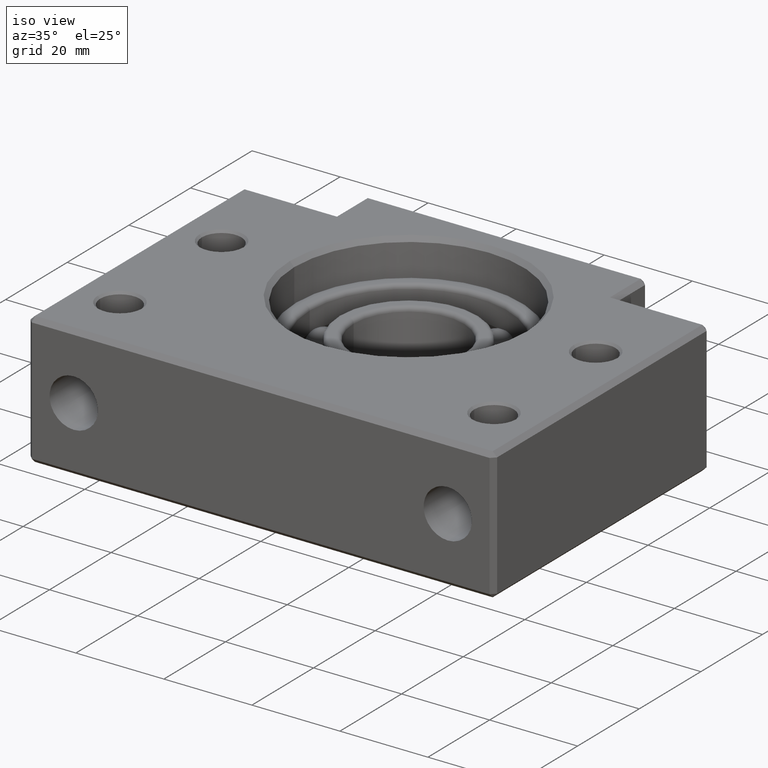
[diagram: clean part render]
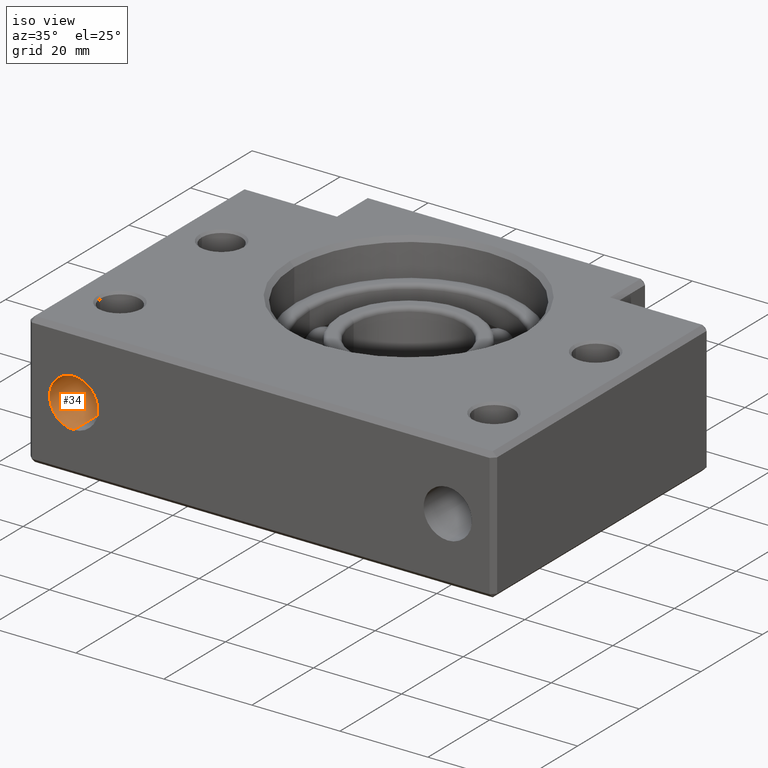
[diagram: same view with one face highlighted and labeled with its STEP entity id]
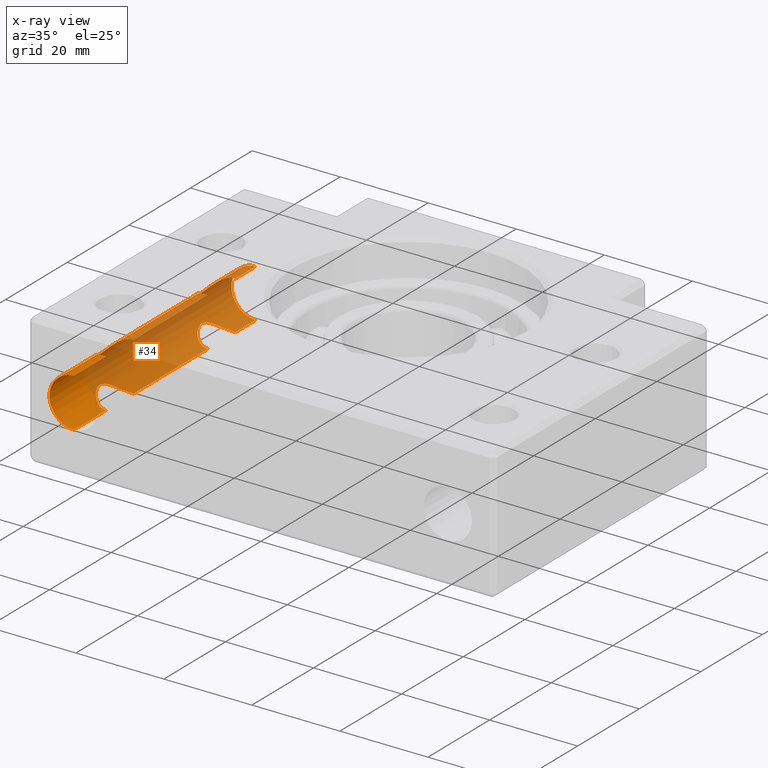
[diagram: x-ray of the same camera — body ghosted, the highlighted face saturated]
A machine part, iso view. The second image highlights one B-rep face of the part: STEP entity #34.
The next image is the same camera in x-ray: the body ghosted, the highlighted face saturated — about 78% of this face is hidden behind the body in this view.
In plain terms, the highlighted cylindrical surface (edge-blend (fillet) strip) has radius 5.5 mm, axis along (-0, 1, -0).
Its self-contained STEP definition (entity closure, byte-faithful):
#13 = ORIENTED_EDGE ( 'NONE', *, *, #50, .F. ) ;
#15 = VERTEX_POINT ( 'NONE', #1627 ) ;
#16 = EDGE_CURVE ( 'NONE', #20, #15, #1626, .T. ) ;
#17 = VERTEX_POINT ( 'NONE', #1680 ) ;
#18 = ORIENTED_EDGE ( 'NONE', *, *, #16, .T. ) ;
#19 = ORIENTED_EDGE ( 'NONE', *, *, #21, .F. ) ;
#20 = VERTEX_POINT ( 'NONE', #1679 ) ;
#21 = EDGE_CURVE ( 'NONE', #20, #17, #1678, .T. ) ;
#22 = EDGE_LOOP ( 'NONE', ( #19, #18, #13, #35, #1411, #1410, #1406, #1404, #1392, #1394, #1397, #1400, #1390, #1459, #1376, #1379 ) ) ;
#27 = EDGE_CURVE ( 'NONE', #146, #45, #1655, .T. ) ;
#34 = ADVANCED_FACE ( 'NONE', ( #1692 ), #1687, .F. ) ;
#35 = ORIENTED_EDGE ( 'NONE', *, *, #27, .F. ) ;
#45 = VERTEX_POINT ( 'NONE', #1686 ) ;
#50 = EDGE_CURVE ( 'NONE', #45, #15, #1748, .T. ) ;
#146 = VERTEX_POINT ( 'NONE', #1910 ) ;
#1375 = VERTEX_POINT ( 'NONE', #4005 ) ;
#1376 = ORIENTED_EDGE ( 'NONE', *, *, #1377, .F. ) ;
#1377 = EDGE_CURVE ( 'NONE', #1378, #1375, #3999, .T. ) ;
#1378 = VERTEX_POINT ( 'NONE', #3998 ) ;
#1379 = ORIENTED_EDGE ( 'NONE', *, *, #1381, .F. ) ;
#1381 = EDGE_CURVE ( 'NONE', #17, #1378, #4000, .T. ) ;
#1389 = VERTEX_POINT ( 'NONE', #4089 ) ;
#1390 = ORIENTED_EDGE ( 'NONE', *, *, #1461, .F. ) ;
#1391 = EDGE_CURVE ( 'NONE', #1415, #1402, #4088, .T. ) ;
#1392 = ORIENTED_EDGE ( 'NONE', *, *, #1393, .T. ) ;
#1393 = EDGE_CURVE ( 'NONE', #1402, #1403, #4084, .T. ) ;
#1394 = ORIENTED_EDGE ( 'NONE', *, *, #1395, .F. ) ;
#1395 = EDGE_CURVE ( 'NONE', #1396, #1403, #4079, .T. ) ;
#1396 = VERTEX_POINT ( 'NONE', #4075 ) ;
#1397 = ORIENTED_EDGE ( 'NONE', *, *, #1398, .F. ) ;
#1398 = EDGE_CURVE ( 'NONE', #1399, #1396, #4065, .T. ) ;
#1399 = VERTEX_POINT ( 'NONE', #4066 ) ;
#1400 = ORIENTED_EDGE ( 'NONE', *, *, #1401, .F. ) ;
#1401 = EDGE_CURVE ( 'NONE', #1414, #1399, #4132, .T. ) ;
#1402 = VERTEX_POINT ( 'NONE', #4131 ) ;
#1403 = VERTEX_POINT ( 'NONE', #4116 ) ;
#1404 = ORIENTED_EDGE ( 'NONE', *, *, #1391, .T. ) ;
#1406 = ORIENTED_EDGE ( 'NONE', *, *, #1407, .F. ) ;
#1407 = EDGE_CURVE ( 'NONE', #1415, #1409, #4162, .T. ) ;
#1408 = EDGE_CURVE ( 'NONE', #1409, #1413, #4157, .T. ) ;
#1409 = VERTEX_POINT ( 'NONE', #4156 ) ;
#1410 = ORIENTED_EDGE ( 'NONE', *, *, #1408, .F. ) ;
#1411 = ORIENTED_EDGE ( 'NONE', *, *, #1412, .T. ) ;
#1412 = EDGE_CURVE ( 'NONE', #146, #1413, #4158, .T. ) ;
#1413 = VERTEX_POINT ( 'NONE', #4203 ) ;
#1414 = VERTEX_POINT ( 'NONE', #4202 ) ;
#1415 = VERTEX_POINT ( 'NONE', #4182 ) ;
#1459 = ORIENTED_EDGE ( 'NONE', *, *, #1460, .F. ) ;
#1460 = EDGE_CURVE ( 'NONE', #1375, #1389, #4382, .T. ) ;
#1461 = EDGE_CURVE ( 'NONE', #1389, #1414, #4456, .T. ) ;
#1623 = DIRECTION ( 'NONE',  ( -0.0000000000000000000, 1.000000000000000000, -0.0000000000000000000 ) ) ;
#1624 = VECTOR ( 'NONE', #1623, 1000.000000000000000 ) ;
#1625 = CARTESIAN_POINT ( 'NONE',  ( -42.50000000000000000, 70.00000000000000000, -5.499999999999994700 ) ) ;
#1626 = LINE ( 'NONE', #1625, #1624 ) ;
#1627 = CARTESIAN_POINT ( 'NONE',  ( -42.50000000000000000, 10.50000000000000200, -5.499999999999994700 ) ) ;
#1654 = CARTESIAN_POINT ( 'NONE',  ( -42.65569211035774800, 19.50000000000000000, -5.499999999999996400 ) ) ;
#1655 = B_SPLINE_CURVE_WITH_KNOTS ( 'NONE', 3,
 ( #1658, #1654, #1720, #1719, #1718, #1717, #1716, #1715, #1714, #1713, #1712, #1711, #1710, #1709, #1708, #1707, #1706, #1705, #1704, #1703, #1702, #1701, #1700, #1699 ),
 .UNSPECIFIED., .F., .F.,
 ( 4, 2, 2, 2, 2, 2, 2, 2, 2, 2, 2, 4 ),
 ( 0.007502526532465637400, 0.007970472504696209500, 0.008438418476926780700, 0.009374310421387924800, 0.01031020236584907100, 0.01124609431031021700, 0.01218198625477136300, 0.01311787819923250500, 0.01358582417146307100, 0.01405377014369363500, 0.01452171611592420100, 0.01498966208815476600 ),
 .UNSPECIFIED. ) ;
#1658 = CARTESIAN_POINT ( 'NONE',  ( -42.50000000000000000, 19.49999999999999600, -5.499999999999994700 ) ) ;
#1674 = DIRECTION ( 'NONE',  ( 0.0000000000000000000, 0.0000000000000000000, 1.000000000000000000 ) ) ;
#1675 = DIRECTION ( 'NONE',  ( -0.0000000000000000000, 1.000000000000000000, -0.0000000000000000000 ) ) ;
#1676 = CARTESIAN_POINT ( 'NONE',  ( -42.50000000000000000, 0.0000000000000000000, 0.0000000000000000000 ) ) ;
#1677 = AXIS2_PLACEMENT_3D ( 'NONE', #1676, #1675, #1674 ) ;
#1678 = CIRCLE ( 'NONE', #1677, 5.499999999999984000 ) ;
#1679 = CARTESIAN_POINT ( 'NONE',  ( -42.50000000000000000, 0.0000000000000000000, -5.499999999999984000 ) ) ;
#1680 = CARTESIAN_POINT ( 'NONE',  ( -42.50000000000000000, 0.0000000000000000000, 5.499999999999984000 ) ) ;
#1681 = DIRECTION ( 'NONE',  ( 0.0000000000000000000, 0.0000000000000000000, 1.000000000000000000 ) ) ;
#1682 = DIRECTION ( 'NONE',  ( -0.0000000000000000000, 1.000000000000000000, -0.0000000000000000000 ) ) ;
#1683 = CARTESIAN_POINT ( 'NONE',  ( -42.50000000000000000, 70.00000000000000000, 0.0000000000000000000 ) ) ;
#1684 = AXIS2_PLACEMENT_3D ( 'NONE', #1683, #1682, #1681 ) ;
#1686 = CARTESIAN_POINT ( 'NONE',  ( -47.00000000000000000, 15.00000000000000000, -3.162277660168373700 ) ) ;
#1687 = CYLINDRICAL_SURFACE ( 'NONE', #1684, 5.499999999999994700 ) ;
#1692 = FACE_OUTER_BOUND ( 'NONE', #22, .T. ) ;
#1699 = CARTESIAN_POINT ( 'NONE',  ( -47.00000000000000000, 15.00000000000000000, -3.162277660168373700 ) ) ;
#1700 = CARTESIAN_POINT ( 'NONE',  ( -46.99999999999998600, 15.15634697075928500, -3.162277660168373300 ) ) ;
#1701 = CARTESIAN_POINT ( 'NONE',  ( -46.99163234680326400, 15.31534251547247800, -3.174274788849245100 ) ) ;
#1702 = CARTESIAN_POINT ( 'NONE',  ( -46.95913124019567400, 15.62478046034173800, -3.219771755370906400 ) ) ;
#1703 = CARTESIAN_POINT ( 'NONE',  ( -46.93519915392791100, 15.77578345577797200, -3.252950897897002300 ) ) ;
#1704 = CARTESIAN_POINT ( 'NONE',  ( -46.87316937340389000, 16.07155080924035700, -3.335876303260322900 ) ) ;
#1705 = CARTESIAN_POINT ( 'NONE',  ( -46.83474881714526100, 16.21721813566953700, -3.385999050853091500 ) ) ;
#1706 = CARTESIAN_POINT ( 'NONE',  ( -46.74593545221461000, 16.49789833873069600, -3.496722610638051300 ) ) ;
#1707 = CARTESIAN_POINT ( 'NONE',  ( -46.69565159054012300, 16.63302640210712700, -3.557202961204028100 ) ) ;
#1708 = CARTESIAN_POINT ( 'NONE',  ( -46.52823191149600700, 17.02593624379659300, -3.748611525993029000 ) ) ;
#1709 = CARTESIAN_POINT ( 'NONE',  ( -46.39430241344015800, 17.27215110638600100, -3.889662600087514700 ) ) ;
#1710 = CARTESIAN_POINT ( 'NONE',  ( -46.08289712435534800, 17.73698924620887500, -4.178266940506732800 ) ) ;
#1711 = CARTESIAN_POINT ( 'NONE',  ( -45.90814994950158500, 17.95167728849040500, -4.323479843170016300 ) ) ;
#1712 = CARTESIAN_POINT ( 'NONE',  ( -45.51732533157800700, 18.35016906097219500, -4.604748839622278200 ) ) ;
#1713 = CARTESIAN_POINT ( 'NONE',  ( -45.29913797122920700, 18.53516766955951700, -4.741950924234935800 ) ) ;
#1714 = CARTESIAN_POINT ( 'NONE',  ( -44.82671569424836400, 18.86250927662502600, -4.990758061453996100 ) ) ;
#1715 = CARTESIAN_POINT ( 'NONE',  ( -44.57156234016917300, 19.00612994729786100, -5.103307477888058100 ) ) ;
#1716 = CARTESIAN_POINT ( 'NONE',  ( -44.02004273320773800, 19.24616506662967600, -5.293825444071395700 ) ) ;
#1717 = CARTESIAN_POINT ( 'NONE',  ( -43.73144248322659400, 19.33929001300146000, -5.369175809390899400 ) ) ;
#1718 = CARTESIAN_POINT ( 'NONE',  ( -43.27694848009662800, 19.43512380445944700, -5.447015322604333900 ) ) ;
#1719 = CARTESIAN_POINT ( 'NONE',  ( -43.12118756756514400, 19.45964463557997300, -5.467023270940716300 ) ) ;
#1720 = CARTESIAN_POINT ( 'NONE',  ( -42.81106827662004800, 19.49194176242694700, -5.493400947171568100 ) ) ;
#1721 = CARTESIAN_POINT ( 'NONE',  ( -42.50000000000000000, 10.50000000000000200, -5.499999999999994700 ) ) ;
#1722 = CARTESIAN_POINT ( 'NONE',  ( -42.65612403480968600, 10.50000000000000700, -5.499999999999996400 ) ) ;
#1723 = CARTESIAN_POINT ( 'NONE',  ( -42.81203502052667200, 10.50810281110969800, -5.493364378552476200 ) ) ;
#1724 = CARTESIAN_POINT ( 'NONE',  ( -43.12342836832825600, 10.54064541899174900, -5.466786544136135200 ) ) ;
#1725 = CARTESIAN_POINT ( 'NONE',  ( -43.27982136488773800, 10.56536980764216500, -5.446613067299009200 ) ) ;
#1726 = CARTESIAN_POINT ( 'NONE',  ( -43.73513874174612000, 10.66171721702398400, -5.368360397055012900 ) ) ;
#1727 = CARTESIAN_POINT ( 'NONE',  ( -44.02402975940270100, 10.75524684931586000, -5.292689612830898200 ) ) ;
#1728 = CARTESIAN_POINT ( 'NONE',  ( -44.57576275909742200, 10.99602635051973500, -5.101611413392580700 ) ) ;
#1729 = CARTESIAN_POINT ( 'NONE',  ( -44.83152902650349600, 11.14056180854459100, -4.988396226770349900 ) ) ;
#1730 = CARTESIAN_POINT ( 'NONE',  ( -45.29998928176195200, 11.46568949056380000, -4.741327297150370200 ) ) ;
#1731 = CARTESIAN_POINT ( 'NONE',  ( -45.51462238888189700, 11.64721163175738600, -4.606622288732087800 ) ) ;
#1732 = CARTESIAN_POINT ( 'NONE',  ( -45.90871470856163200, 12.04876262808181600, -4.323144815319842000 ) ) ;
#1733 = CARTESIAN_POINT ( 'NONE',  ( -46.08422531764438200, 12.26501941656663400, -4.177026681382111300 ) ) ;
#1734 = CARTESIAN_POINT ( 'NONE',  ( -46.39271219881602800, 12.72544913079759400, -3.891145687559126800 ) ) ;
#1735 = CARTESIAN_POINT ( 'NONE',  ( -46.52661515874280000, 12.97032531560476400, -3.750450289997560900 ) ) ;
#1736 = CARTESIAN_POINT ( 'NONE',  ( -46.75280729843204600, 13.50105402248937000, -3.491867279374059900 ) ) ;
#1737 = CARTESIAN_POINT ( 'NONE',  ( -46.84186795678693500, 13.77935936865962300, -3.377716779397093500 ) ) ;
#1738 = CARTESIAN_POINT ( 'NONE',  ( -46.93519225268126900, 14.22410380332221700, -3.252962754283305700 ) ) ;
#1739 = CARTESIAN_POINT ( 'NONE',  ( -46.95958010707528300, 14.37846019299080400, -3.219148261481557400 ) ) ;
#1745 = CARTESIAN_POINT ( 'NONE',  ( -46.99184049070769500, 14.68769330913777400, -3.173978460364850700 ) ) ;
#1746 = CARTESIAN_POINT ( 'NONE',  ( -47.00000000000000700, 14.84331517180625300, -3.162277660168375500 ) ) ;
#1747 = CARTESIAN_POINT ( 'NONE',  ( -47.00000000000000000, 15.00000000000000000, -3.162277660168373700 ) ) ;
#1748 = B_SPLINE_CURVE_WITH_KNOTS ( 'NONE', 3,
 ( #1747, #1746, #1745, #1739, #1738, #1737, #1736, #1735, #1734, #1733, #1732, #1731, #1730, #1729, #1728, #1727, #1726, #1725, #1724, #1723, #1722, #1721 ),
 .UNSPECIFIED., .F., .F.,
 ( 4, 2, 2, 2, 2, 2, 2, 2, 2, 2, 4 ),
 ( 0.01498966208815476600, 0.01545861926658188000, 0.01592757644500899400, 0.01686549080186321900, 0.01780340515871744300, 0.01874131951557166800, 0.01967923387242589300, 0.02061714822928011800, 0.02155506258613434200, 0.02202401976456144400, 0.02249297694298854600 ),
 .UNSPECIFIED. ) ;
#1910 = CARTESIAN_POINT ( 'NONE',  ( -42.50000000000000000, 19.49999999999999600, -5.499999999999994700 ) ) ;
#3998 = CARTESIAN_POINT ( 'NONE',  ( -42.50000000000000000, 10.50000000000000200, 5.499999999999994700 ) ) ;
#3999 = B_SPLINE_CURVE_WITH_KNOTS ( 'NONE', 3,
 ( #4058, #4057, #4056, #4055, #4054, #4053, #4052, #4051, #4050, #4049, #4048, #4047, #4046, #4045, #4044, #4043, #4042, #4041, #4040, #4039, #4038, #4037, #4036, #4035 ),
 .UNSPECIFIED., .F., .F.,
 ( 4, 2, 2, 2, 2, 2, 2, 2, 2, 2, 2, 4 ),
 ( 0.007502526532465637400, 0.007970472504696207700, 0.008438418476926778900, 0.009374310421387921400, 0.01031020236584906400, 0.01124609431031020600, 0.01218198625477134900, 0.01311787819923249100, 0.01358582417146306100, 0.01405377014369363000, 0.01452171611592420000, 0.01498966208815476900 ),
 .UNSPECIFIED. ) ;
#4000 = LINE ( 'NONE', #4064, #4063 ) ;
#4005 = CARTESIAN_POINT ( 'NONE',  ( -47.00000000000000000, 15.00000000000000000, 3.162277660168373700 ) ) ;
#4035 = CARTESIAN_POINT ( 'NONE',  ( -47.00000000000000000, 15.00000000000000000, 3.162277660168373700 ) ) ;
#4036 = CARTESIAN_POINT ( 'NONE',  ( -46.99999999999999300, 14.84365302924070900, 3.162277660168374600 ) ) ;
#4037 = CARTESIAN_POINT ( 'NONE',  ( -46.99163234680327200, 14.68465748452752000, 3.174274788849246400 ) ) ;
#4038 = CARTESIAN_POINT ( 'NONE',  ( -46.95913124019568100, 14.37521953965826200, 3.219771755370907800 ) ) ;
#4039 = CARTESIAN_POINT ( 'NONE',  ( -46.93519915392791800, 14.22421654422202900, 3.252950897897002300 ) ) ;
#4040 = CARTESIAN_POINT ( 'NONE',  ( -46.87316937340389700, 13.92844919075964000, 3.335876303260323400 ) ) ;
#4041 = CARTESIAN_POINT ( 'NONE',  ( -46.83474881714526800, 13.78278186433045800, 3.385999050853093300 ) ) ;
#4042 = CARTESIAN_POINT ( 'NONE',  ( -46.74593545221461700, 13.50210166126929900, 3.496722610638054000 ) ) ;
#4043 = CARTESIAN_POINT ( 'NONE',  ( -46.69565159054012300, 13.36697359789287300, 3.557202961204028100 ) ) ;
#4044 = CARTESIAN_POINT ( 'NONE',  ( -46.52823191149599300, 12.97406375620340500, 3.748611525993027700 ) ) ;
#4045 = CARTESIAN_POINT ( 'NONE',  ( -46.39430241344015800, 12.72784889361400800, 3.889662600087515200 ) ) ;
#4046 = CARTESIAN_POINT ( 'NONE',  ( -46.08289712435534100, 12.26301075379112000, 4.178266940506733600 ) ) ;
#4047 = CARTESIAN_POINT ( 'NONE',  ( -45.90814994950157800, 12.04832271150959500, 4.323479843170016300 ) ) ;
#4048 = CARTESIAN_POINT ( 'NONE',  ( -45.51732533157802200, 11.64983093902779700, 4.604748839622280900 ) ) ;
#4049 = CARTESIAN_POINT ( 'NONE',  ( -45.29913797122920000, 11.46483233044048200, 4.741950924234935800 ) ) ;
#4050 = CARTESIAN_POINT ( 'NONE',  ( -44.82671569424835000, 11.13749072337497200, 4.990758061453993500 ) ) ;
#4051 = CARTESIAN_POINT ( 'NONE',  ( -44.57156234016916600, 10.99387005270214800, 5.103307477888056300 ) ) ;
#4052 = CARTESIAN_POINT ( 'NONE',  ( -44.02004273320773100, 10.75383493337032100, 5.293825444071394800 ) ) ;
#4053 = CARTESIAN_POINT ( 'NONE',  ( -43.73144248322659400, 10.66070998699854900, 5.369175809390895900 ) ) ;
#4054 = CARTESIAN_POINT ( 'NONE',  ( -43.27694848009665000, 10.56487619554055300, 5.447015322604333900 ) ) ;
#4055 = CARTESIAN_POINT ( 'NONE',  ( -43.12118756756514400, 10.54035536442003500, 5.467023270940717200 ) ) ;
#4056 = CARTESIAN_POINT ( 'NONE',  ( -42.81106827662004800, 10.50805823757304900, 5.493400947171569900 ) ) ;
#4057 = CARTESIAN_POINT ( 'NONE',  ( -42.65569211035774100, 10.50000000000000400, 5.499999999999993800 ) ) ;
#4058 = CARTESIAN_POINT ( 'NONE',  ( -42.50000000000000000, 10.50000000000000200, 5.499999999999994700 ) ) ;
#4062 = DIRECTION ( 'NONE',  ( -0.0000000000000000000, 1.000000000000000000, -0.0000000000000000000 ) ) ;
#4063 = VECTOR ( 'NONE', #4062, 1000.000000000000000 ) ;
#4064 = CARTESIAN_POINT ( 'NONE',  ( -42.50000000000000000, 70.00000000000000000, 5.499999999999994700 ) ) ;
#4065 = B_SPLINE_CURVE_WITH_KNOTS ( 'NONE', 3,
 ( #4074, #4073, #4072, #4071, #4070, #4069, #4068, #4067, #4130, #4129, #4128, #4127, #4126, #4125, #4124, #4123, #4122, #4121, #4120, #4119, #4118, #4117 ),
 .UNSPECIFIED., .F., .F.,
 ( 4, 2, 2, 2, 2, 2, 2, 2, 2, 2, 4 ),
 ( 0.01498966208815477200, 0.01545861926658187400, 0.01592757644500897600, 0.01686549080186320100, 0.01780340515871742600, 0.01874131951557165100, 0.01967923387242587200, 0.02061714822928009700, 0.02155506258613432100, 0.02202401976456144100, 0.02249297694298856400 ),
 .UNSPECIFIED. ) ;
#4066 = CARTESIAN_POINT ( 'NONE',  ( -47.00000000000000000, 48.00000000000000000, 3.162277660168373300 ) ) ;
#4067 = CARTESIAN_POINT ( 'NONE',  ( -46.52661515874281400, 50.02967468439525300, 3.750450289997560500 ) ) ;
#4068 = CARTESIAN_POINT ( 'NONE',  ( -46.75280729843204600, 49.49894597751063000, 3.491867279374059900 ) ) ;
#4069 = CARTESIAN_POINT ( 'NONE',  ( -46.84186795678693500, 49.22064063134039500, 3.377716779397096600 ) ) ;
#4070 = CARTESIAN_POINT ( 'NONE',  ( -46.93519225268126900, 48.77589619667779200, 3.252962754283307500 ) ) ;
#4071 = CARTESIAN_POINT ( 'NONE',  ( -46.95958010707526100, 48.62153980700917800, 3.219148261481557400 ) ) ;
#4072 = CARTESIAN_POINT ( 'NONE',  ( -46.99184049070769500, 48.31230669086222200, 3.173978460364848900 ) ) ;
#4073 = CARTESIAN_POINT ( 'NONE',  ( -47.00000000000000700, 48.15668482819373300, 3.162277660168372900 ) ) ;
#4074 = CARTESIAN_POINT ( 'NONE',  ( -47.00000000000000000, 48.00000000000000000, 3.162277660168373300 ) ) ;
#4075 = CARTESIAN_POINT ( 'NONE',  ( -42.50000000000000000, 52.50000000000000000, 5.499999999999994700 ) ) ;
#4076 = DIRECTION ( 'NONE',  ( -0.0000000000000000000, 1.000000000000000000, -0.0000000000000000000 ) ) ;
#4077 = VECTOR ( 'NONE', #4076, 1000.000000000000000 ) ;
#4078 = CARTESIAN_POINT ( 'NONE',  ( -42.50000000000000000, 70.00000000000000000, 5.499999999999994700 ) ) ;
#4079 = LINE ( 'NONE', #4078, #4077 ) ;
#4080 = DIRECTION ( 'NONE',  ( 0.0000000000000000000, 0.0000000000000000000, 1.000000000000000000 ) ) ;
#4081 = DIRECTION ( 'NONE',  ( -0.0000000000000000000, 1.000000000000000000, -0.0000000000000000000 ) ) ;
#4082 = CARTESIAN_POINT ( 'NONE',  ( -42.50000000000000000, 59.00000000000001400, 0.0000000000000000000 ) ) ;
#4083 = AXIS2_PLACEMENT_3D ( 'NONE', #4082, #4081, #4080 ) ;
#4084 = CIRCLE ( 'NONE', #4083, 5.500000000000005300 ) ;
#4085 = DIRECTION ( 'NONE',  ( -0.0000000000000000000, 1.000000000000000000, -0.0000000000000000000 ) ) ;
#4086 = VECTOR ( 'NONE', #4085, 1000.000000000000000 ) ;
#4087 = CARTESIAN_POINT ( 'NONE',  ( -42.50000000000000000, 70.00000000000000000, -5.499999999999994700 ) ) ;
#4088 = LINE ( 'NONE', #4087, #4086 ) ;
#4089 = CARTESIAN_POINT ( 'NONE',  ( -42.50000000000000000, 19.49999999999999600, 5.499999999999994700 ) ) ;
#4095 = CARTESIAN_POINT ( 'NONE',  ( -46.74593545221462400, 46.50210166126930700, 3.496722610638054500 ) ) ;
#4096 = CARTESIAN_POINT ( 'NONE',  ( -46.69565159054012300, 46.36697359789288700, 3.557202961204027700 ) ) ;
#4097 = CARTESIAN_POINT ( 'NONE',  ( -46.52823191149601500, 45.97406375620341400, 3.748611525993027300 ) ) ;
#4098 = CARTESIAN_POINT ( 'NONE',  ( -46.39430241344015800, 45.72784889361400900, 3.889662600087514300 ) ) ;
#4099 = CARTESIAN_POINT ( 'NONE',  ( -46.08289712435534800, 45.26301075379113600, 4.178266940506732800 ) ) ;
#4100 = CARTESIAN_POINT ( 'NONE',  ( -45.90814994950157800, 45.04832271150961300, 4.323479843170016300 ) ) ;
#4101 = CARTESIAN_POINT ( 'NONE',  ( -45.51732533157801400, 44.64983093902780800, 4.604748839622280900 ) ) ;
#4102 = CARTESIAN_POINT ( 'NONE',  ( -45.29913797122920000, 44.46483233044048000, 4.741950924234936700 ) ) ;
#4103 = CARTESIAN_POINT ( 'NONE',  ( -44.82671569424835700, 44.13749072337498100, 4.990758061453996100 ) ) ;
#4104 = CARTESIAN_POINT ( 'NONE',  ( -44.57156234016917300, 43.99387005270215700, 5.103307477888060700 ) ) ;
#4105 = CARTESIAN_POINT ( 'NONE',  ( -44.02004273320771000, 43.75383493337030700, 5.293825444071393900 ) ) ;
#4106 = CARTESIAN_POINT ( 'NONE',  ( -43.73144248322656600, 43.66070998699854000, 5.369175809390895900 ) ) ;
#4107 = CARTESIAN_POINT ( 'NONE',  ( -43.27694848009664200, 43.56487619554054900, 5.447015322604334700 ) ) ;
#4108 = CARTESIAN_POINT ( 'NONE',  ( -43.12118756756513700, 43.54035536442003000, 5.467023270940717200 ) ) ;
#4109 = CARTESIAN_POINT ( 'NONE',  ( -42.81106827662003400, 43.50805823757305300, 5.493400947171569900 ) ) ;
#4110 = CARTESIAN_POINT ( 'NONE',  ( -42.65569211035774100, 43.50000000000000700, 5.499999999999992000 ) ) ;
#4111 = CARTESIAN_POINT ( 'NONE',  ( -42.50000000000000000, 43.50000000000000700, 5.499999999999994700 ) ) ;
#4116 = CARTESIAN_POINT ( 'NONE',  ( -42.50000000000000000, 59.00000000000001400, 5.500000000000005300 ) ) ;
#4117 = CARTESIAN_POINT ( 'NONE',  ( -42.50000000000000000, 52.50000000000000000, 5.499999999999994700 ) ) ;
#4118 = CARTESIAN_POINT ( 'NONE',  ( -42.65612403480967200, 52.50000000000001400, 5.499999999999996400 ) ) ;
#4119 = CARTESIAN_POINT ( 'NONE',  ( -42.81203502052666500, 52.49189718889029900, 5.493364378552475300 ) ) ;
#4120 = CARTESIAN_POINT ( 'NONE',  ( -43.12342836832824800, 52.45935458100826300, 5.466786544136129900 ) ) ;
#4121 = CARTESIAN_POINT ( 'NONE',  ( -43.27982136488772400, 52.43463019235785100, 5.446613067299010100 ) ) ;
#4122 = CARTESIAN_POINT ( 'NONE',  ( -43.73513874174611300, 52.33828278297602300, 5.368360397055015600 ) ) ;
#4123 = CARTESIAN_POINT ( 'NONE',  ( -44.02402975940270800, 52.24475315068414700, 5.292689612830897300 ) ) ;
#4124 = CARTESIAN_POINT ( 'NONE',  ( -44.57576275909741500, 52.00397364948028000, 5.101611413392579000 ) ) ;
#4125 = CARTESIAN_POINT ( 'NONE',  ( -44.83152902650350300, 51.85943819145541800, 4.988396226770351700 ) ) ;
#4126 = CARTESIAN_POINT ( 'NONE',  ( -45.29998928176196000, 51.53431050943620300, 4.741327297150372800 ) ) ;
#4127 = CARTESIAN_POINT ( 'NONE',  ( -45.51462238888190400, 51.35278836824262100, 4.606622288732088700 ) ) ;
#4128 = CARTESIAN_POINT ( 'NONE',  ( -45.90871470856163900, 50.95123737191819700, 4.323144815319842000 ) ) ;
#4129 = CARTESIAN_POINT ( 'NONE',  ( -46.08422531764438900, 50.73498058343334800, 4.177026681382108600 ) ) ;
#4130 = CARTESIAN_POINT ( 'NONE',  ( -46.39271219881602800, 50.27455086920241500, 3.891145687559123300 ) ) ;
#4131 = CARTESIAN_POINT ( 'NONE',  ( -42.50000000000000000, 59.00000000000001400, -5.500000000000005300 ) ) ;
#4132 = B_SPLINE_CURVE_WITH_KNOTS ( 'NONE', 3,
 ( #4111, #4110, #4109, #4108, #4107, #4106, #4105, #4104, #4103, #4102, #4101, #4100, #4099, #4098, #4097, #4096, #4095, #4169, #4168, #4167, #4166, #4165, #4164, #4163 ),
 .UNSPECIFIED., .F., .F.,
 ( 4, 2, 2, 2, 2, 2, 2, 2, 2, 2, 2, 4 ),
 ( 0.007502526532465639100, 0.007970472504696209500, 0.008438418476926778900, 0.009374310421387917900, 0.01031020236584905700, 0.01124609431031019800, 0.01218198625477133700, 0.01311787819923247500, 0.01358582417146304800, 0.01405377014369362300, 0.01452171611592419800, 0.01498966208815477200 ),
 .UNSPECIFIED. ) ;
#4133 = CARTESIAN_POINT ( 'NONE',  ( -46.99999999999998600, 48.15634697075928000, -3.162277660168374200 ) ) ;
#4134 = CARTESIAN_POINT ( 'NONE',  ( -46.99163234680325000, 48.31534251547245900, -3.174274788849244600 ) ) ;
#4135 = CARTESIAN_POINT ( 'NONE',  ( -46.95913124019567400, 48.62478046034174600, -3.219771755370906000 ) ) ;
#4136 = CARTESIAN_POINT ( 'NONE',  ( -46.93519915392789700, 48.77578345577798300, -3.252950897897001900 ) ) ;
#4137 = CARTESIAN_POINT ( 'NONE',  ( -46.87316937340389700, 49.07155080924035700, -3.335876303260322500 ) ) ;
#4138 = CARTESIAN_POINT ( 'NONE',  ( -46.83474881714527500, 49.21721813566954800, -3.385999050853094600 ) ) ;
#4139 = CARTESIAN_POINT ( 'NONE',  ( -46.74593545221462400, 49.49789833873070000, -3.496722610638054500 ) ) ;
#4140 = CARTESIAN_POINT ( 'NONE',  ( -46.69565159054012300, 49.63302640210712700, -3.557202961204027700 ) ) ;
#4141 = CARTESIAN_POINT ( 'NONE',  ( -46.52823191149601500, 50.02593624379658600, -3.748611525993027300 ) ) ;
#4142 = CARTESIAN_POINT ( 'NONE',  ( -46.39430241344015800, 50.27215110638597700, -3.889662600087514300 ) ) ;
#4143 = CARTESIAN_POINT ( 'NONE',  ( -46.08289712435534800, 50.73698924620887900, -4.178266940506732800 ) ) ;
#4144 = CARTESIAN_POINT ( 'NONE',  ( -45.90814994950157800, 50.95167728849040900, -4.323479843170016300 ) ) ;
#4145 = CARTESIAN_POINT ( 'NONE',  ( -45.51732533157801400, 51.35016906097219900, -4.604748839622280900 ) ) ;
#4146 = CARTESIAN_POINT ( 'NONE',  ( -45.29913797122920000, 51.53516766955951300, -4.741950924234936700 ) ) ;
#4147 = CARTESIAN_POINT ( 'NONE',  ( -44.82671569424835700, 51.86250927662501900, -4.990758061453996100 ) ) ;
#4148 = CARTESIAN_POINT ( 'NONE',  ( -44.57156234016917300, 52.00612994729787200, -5.103307477888060700 ) ) ;
#4149 = CARTESIAN_POINT ( 'NONE',  ( -44.02004273320771000, 52.24616506662966500, -5.293825444071393900 ) ) ;
#4150 = CARTESIAN_POINT ( 'NONE',  ( -43.73144248322656600, 52.33929001300145200, -5.369175809390895900 ) ) ;
#4151 = CARTESIAN_POINT ( 'NONE',  ( -43.27694848009664200, 52.43512380445944400, -5.447015322604334700 ) ) ;
#4152 = CARTESIAN_POINT ( 'NONE',  ( -43.12118756756513700, 52.45964463557995600, -5.467023270940717200 ) ) ;
#4153 = CARTESIAN_POINT ( 'NONE',  ( -46.99184049070769500, 47.68769330913776400, -3.173978460364848900 ) ) ;
#4154 = CARTESIAN_POINT ( 'NONE',  ( -47.00000000000000700, 47.84331517180627500, -3.162277660168372900 ) ) ;
#4155 = CARTESIAN_POINT ( 'NONE',  ( -47.00000000000000000, 48.00000000000000000, -3.162277660168373300 ) ) ;
#4156 = CARTESIAN_POINT ( 'NONE',  ( -47.00000000000000000, 48.00000000000000000, -3.162277660168373300 ) ) ;
#4157 = B_SPLINE_CURVE_WITH_KNOTS ( 'NONE', 3,
 ( #4155, #4154, #4153, #4201, #4200, #4199, #4198, #4197, #4196, #4195, #4194, #4193, #4192, #4191, #4190, #4189, #4188, #4187, #4186, #4185, #4184, #4183 ),
 .UNSPECIFIED., .F., .F.,
 ( 4, 2, 2, 2, 2, 2, 2, 2, 2, 2, 4 ),
 ( 0.01498966208815477200, 0.01545861926658187400, 0.01592757644500897600, 0.01686549080186320100, 0.01780340515871742600, 0.01874131951557165100, 0.01967923387242587200, 0.02061714822928009700, 0.02155506258613432100, 0.02202401976456144100, 0.02249297694298856400 ),
 .UNSPECIFIED. ) ;
#4158 = LINE ( 'NONE', #4206, #4205 ) ;
#4159 = CARTESIAN_POINT ( 'NONE',  ( -42.81106827662003400, 52.49194176242695400, -5.493400947171569900 ) ) ;
#4160 = CARTESIAN_POINT ( 'NONE',  ( -42.65569211035774100, 52.49999999999999300, -5.499999999999992000 ) ) ;
#4161 = CARTESIAN_POINT ( 'NONE',  ( -42.50000000000000000, 52.50000000000000000, -5.499999999999994700 ) ) ;
#4162 = B_SPLINE_CURVE_WITH_KNOTS ( 'NONE', 3,
 ( #4161, #4160, #4159, #4152, #4151, #4150, #4149, #4148, #4147, #4146, #4145, #4144, #4143, #4142, #4141, #4140, #4139, #4138, #4137, #4136, #4135, #4134, #4133, #4207 ),
 .UNSPECIFIED., .F., .F.,
 ( 4, 2, 2, 2, 2, 2, 2, 2, 2, 2, 2, 4 ),
 ( 0.007502526532465639100, 0.007970472504696209500, 0.008438418476926778900, 0.009374310421387917900, 0.01031020236584905700, 0.01124609431031019800, 0.01218198625477133700, 0.01311787819923247500, 0.01358582417146304800, 0.01405377014369362300, 0.01452171611592419800, 0.01498966208815477200 ),
 .UNSPECIFIED. ) ;
#4163 = CARTESIAN_POINT ( 'NONE',  ( -47.00000000000000000, 48.00000000000000000, 3.162277660168373300 ) ) ;
#4164 = CARTESIAN_POINT ( 'NONE',  ( -46.99999999999998600, 47.84365302924070600, 3.162277660168374200 ) ) ;
#4165 = CARTESIAN_POINT ( 'NONE',  ( -46.99163234680325000, 47.68465748452752000, 3.174274788849244600 ) ) ;
#4166 = CARTESIAN_POINT ( 'NONE',  ( -46.95913124019567400, 47.37521953965826100, 3.219771755370906000 ) ) ;
#4167 = CARTESIAN_POINT ( 'NONE',  ( -46.93519915392789700, 47.22421654422204500, 3.252950897897001900 ) ) ;
#4168 = CARTESIAN_POINT ( 'NONE',  ( -46.87316937340389700, 46.92844919075965000, 3.335876303260322500 ) ) ;
#4169 = CARTESIAN_POINT ( 'NONE',  ( -46.83474881714527500, 46.78278186433046700, 3.385999050853094600 ) ) ;
#4182 = CARTESIAN_POINT ( 'NONE',  ( -42.50000000000000000, 52.50000000000000000, -5.499999999999994700 ) ) ;
#4183 = CARTESIAN_POINT ( 'NONE',  ( -42.50000000000000000, 43.50000000000000700, -5.499999999999994700 ) ) ;
#4184 = CARTESIAN_POINT ( 'NONE',  ( -42.65612403480967200, 43.50000000000001400, -5.499999999999996400 ) ) ;
#4185 = CARTESIAN_POINT ( 'NONE',  ( -42.81203502052666500, 43.50810281110969400, -5.493364378552475300 ) ) ;
#4186 = CARTESIAN_POINT ( 'NONE',  ( -43.12342836832824800, 43.54064541899174400, -5.466786544136129900 ) ) ;
#4187 = CARTESIAN_POINT ( 'NONE',  ( -43.27982136488772400, 43.56536980764217000, -5.446613067299010100 ) ) ;
#4188 = CARTESIAN_POINT ( 'NONE',  ( -43.73513874174611300, 43.66171721702398400, -5.368360397055015600 ) ) ;
#4189 = CARTESIAN_POINT ( 'NONE',  ( -44.02402975940270800, 43.75524684931586000, -5.292689612830897300 ) ) ;
#4190 = CARTESIAN_POINT ( 'NONE',  ( -44.57576275909741500, 43.99602635051974200, -5.101611413392579000 ) ) ;
#4191 = CARTESIAN_POINT ( 'NONE',  ( -44.83152902650350300, 44.14056180854458900, -4.988396226770351700 ) ) ;
#4192 = CARTESIAN_POINT ( 'NONE',  ( -45.29998928176196000, 44.46568949056381100, -4.741327297150372800 ) ) ;
#4193 = CARTESIAN_POINT ( 'NONE',  ( -45.51462238888190400, 44.64721163175739300, -4.606622288732088700 ) ) ;
#4194 = CARTESIAN_POINT ( 'NONE',  ( -45.90871470856163900, 45.04876262808182500, -4.323144815319842000 ) ) ;
#4195 = CARTESIAN_POINT ( 'NONE',  ( -46.08422531764438900, 45.26501941656664500, -4.177026681382108600 ) ) ;
#4196 = CARTESIAN_POINT ( 'NONE',  ( -46.39271219881602800, 45.72544913079760700, -3.891145687559123300 ) ) ;
#4197 = CARTESIAN_POINT ( 'NONE',  ( -46.52661515874281400, 45.97032531560477500, -3.750450289997560500 ) ) ;
#4198 = CARTESIAN_POINT ( 'NONE',  ( -46.75280729843204600, 46.50105402248937700, -3.491867279374059900 ) ) ;
#4199 = CARTESIAN_POINT ( 'NONE',  ( -46.84186795678693500, 46.77935936865962000, -3.377716779397096600 ) ) ;
#4200 = CARTESIAN_POINT ( 'NONE',  ( -46.93519225268126900, 47.22410380332219400, -3.252962754283307500 ) ) ;
#4201 = CARTESIAN_POINT ( 'NONE',  ( -46.95958010707526100, 47.37846019299080100, -3.219148261481557400 ) ) ;
#4202 = CARTESIAN_POINT ( 'NONE',  ( -42.50000000000000000, 43.50000000000000700, 5.499999999999994700 ) ) ;
#4203 = CARTESIAN_POINT ( 'NONE',  ( -42.50000000000000000, 43.50000000000000700, -5.499999999999994700 ) ) ;
#4204 = DIRECTION ( 'NONE',  ( -0.0000000000000000000, 1.000000000000000000, -0.0000000000000000000 ) ) ;
#4205 = VECTOR ( 'NONE', #4204, 1000.000000000000000 ) ;
#4206 = CARTESIAN_POINT ( 'NONE',  ( -42.50000000000000000, 70.00000000000000000, -5.499999999999994700 ) ) ;
#4207 = CARTESIAN_POINT ( 'NONE',  ( -47.00000000000000000, 48.00000000000000000, -3.162277660168373300 ) ) ;
#4382 = B_SPLINE_CURVE_WITH_KNOTS ( 'NONE', 3,
 ( #4391, #4390, #4389, #4388, #4387, #4386, #4385, #4384, #4383, #4450, #4449, #4448, #4447, #4446, #4445, #4444, #4443, #4442, #4441, #4440, #4439, #4438 ),
 .UNSPECIFIED., .F., .F.,
 ( 4, 2, 2, 2, 2, 2, 2, 2, 2, 2, 4 ),
 ( 0.01498966208815476900, 0.01545861926658188100, 0.01592757644500899400, 0.01686549080186322200, 0.01780340515871745000, 0.01874131951557167500, 0.01967923387242590000, 0.02061714822928012800, 0.02155506258613435300, 0.02202401976456145800, 0.02249297694298856000 ),
 .UNSPECIFIED. ) ;
#4383 = CARTESIAN_POINT ( 'NONE',  ( -46.39271219881602800, 17.27455086920240000, 3.891145687559125000 ) ) ;
#4384 = CARTESIAN_POINT ( 'NONE',  ( -46.52661515874280000, 17.02967468439523600, 3.750450289997563100 ) ) ;
#4385 = CARTESIAN_POINT ( 'NONE',  ( -46.75280729843204600, 16.49894597751063300, 3.491867279374061300 ) ) ;
#4386 = CARTESIAN_POINT ( 'NONE',  ( -46.84186795678694200, 16.22064063134037700, 3.377716779397093000 ) ) ;
#4387 = CARTESIAN_POINT ( 'NONE',  ( -46.93519225268127600, 15.77589619667778300, 3.252962754283307100 ) ) ;
#4388 = CARTESIAN_POINT ( 'NONE',  ( -46.95958010707527600, 15.62153980700919400, 3.219148261481557900 ) ) ;
#4389 = CARTESIAN_POINT ( 'NONE',  ( -46.99184049070769500, 15.31230669086222600, 3.173978460364850700 ) ) ;
#4390 = CARTESIAN_POINT ( 'NONE',  ( -47.00000000000000000, 15.15668482819374300, 3.162277660168375500 ) ) ;
#4391 = CARTESIAN_POINT ( 'NONE',  ( -47.00000000000000000, 15.00000000000000000, 3.162277660168373700 ) ) ;
#4438 = CARTESIAN_POINT ( 'NONE',  ( -42.50000000000000000, 19.49999999999999600, 5.499999999999994700 ) ) ;
#4439 = CARTESIAN_POINT ( 'NONE',  ( -42.65612403480968600, 19.50000000000000400, 5.499999999999996400 ) ) ;
#4440 = CARTESIAN_POINT ( 'NONE',  ( -42.81203502052667200, 19.49189718889030900, 5.493364378552475300 ) ) ;
#4441 = CARTESIAN_POINT ( 'NONE',  ( -43.12342836832823400, 19.45935458100824500, 5.466786544136129900 ) ) ;
#4442 = CARTESIAN_POINT ( 'NONE',  ( -43.27982136488772400, 19.43463019235783700, 5.446613067299008300 ) ) ;
#4443 = CARTESIAN_POINT ( 'NONE',  ( -43.73513874174611300, 19.33828278297602300, 5.368360397055013800 ) ) ;
#4444 = CARTESIAN_POINT ( 'NONE',  ( -44.02402975940272300, 19.24475315068414000, 5.292689612830893800 ) ) ;
#4445 = CARTESIAN_POINT ( 'NONE',  ( -44.57576275909741500, 19.00397364948026200, 5.101611413392578100 ) ) ;
#4446 = CARTESIAN_POINT ( 'NONE',  ( -44.83152902650351000, 18.85943819145541400, 4.988396226770350800 ) ) ;
#4447 = CARTESIAN_POINT ( 'NONE',  ( -45.29998928176195200, 18.53431050943620000, 4.741327297150370200 ) ) ;
#4448 = CARTESIAN_POINT ( 'NONE',  ( -45.51462238888187500, 18.35278836824261700, 4.606622288732088700 ) ) ;
#4449 = CARTESIAN_POINT ( 'NONE',  ( -45.90871470856163900, 17.95123737191818200, 4.323144815319842800 ) ) ;
#4450 = CARTESIAN_POINT ( 'NONE',  ( -46.08422531764439600, 17.73498058343336600, 4.177026681382109500 ) ) ;
#4453 = DIRECTION ( 'NONE',  ( -0.0000000000000000000, 1.000000000000000000, -0.0000000000000000000 ) ) ;
#4454 = VECTOR ( 'NONE', #4453, 1000.000000000000000 ) ;
#4455 = CARTESIAN_POINT ( 'NONE',  ( -42.50000000000000000, 70.00000000000000000, 5.499999999999994700 ) ) ;
#4456 = LINE ( 'NONE', #4455, #4454 ) ;